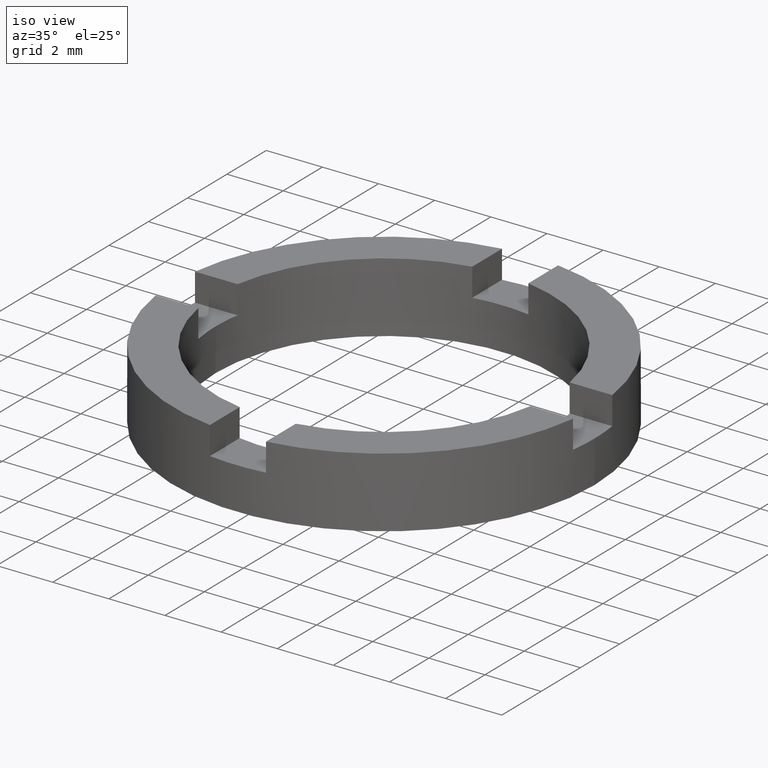
[diagram: clean part render]
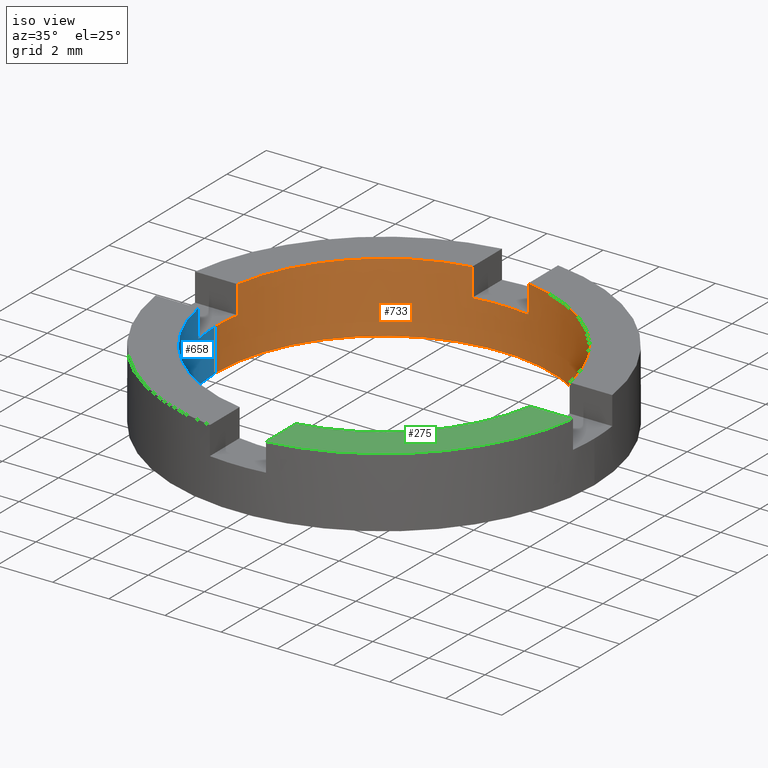
[diagram: same view with three faces highlighted in distinct colors, each labeled with its STEP entity id]
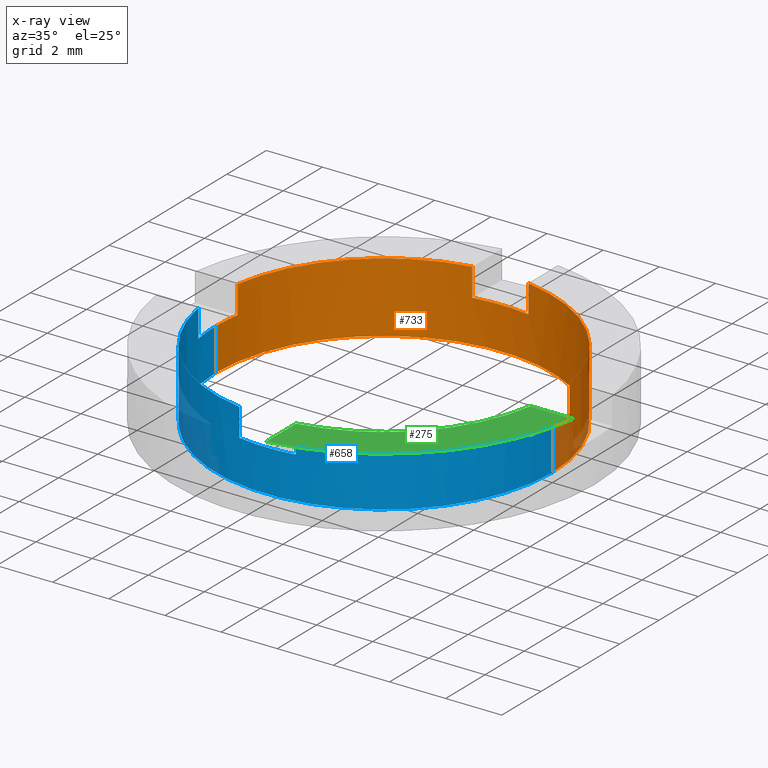
[diagram: x-ray of the same camera — body ghosted, the three highlighted faces saturated]
A machine part, iso view with three faces highlighted in distinct colors.
The next image is the same camera in x-ray (body ghosted, the three faces saturated) — at least one of them is partly hidden behind the body in this view.
Their STEP definitions:

[orange] entity #733 — the highlighted cylindrical surface (partial cylindrical patch) has radius 6 mm, axis along (-0, -0, -1).
#5 = LINE ( 'NONE', #232, #266 ) ;
#26 = EDGE_LOOP ( 'NONE', ( #28, #44, #123, #539, #557, #289, #269, #130, #306, #295, #47, #38 ) ) ;
#28 = ORIENTED_EDGE ( 'NONE', *, *, #442, .F. ) ;
#38 = ORIENTED_EDGE ( 'NONE', *, *, #59, .F. ) ;
#39 = CIRCLE ( 'NONE', #252, 6.000000000000000888 ) ;
#44 = ORIENTED_EDGE ( 'NONE', *, *, #230, .F. ) ;
#45 = CARTESIAN_POINT ( 'NONE',  ( 1.000000000000001332, 5.916079783099617018, 1.500000000000000000 ) ) ;
#46 = VECTOR ( 'NONE', #496, 1000.000000000000000 ) ;
#47 = ORIENTED_EDGE ( 'NONE', *, *, #117, .T. ) ;
#51 = VECTOR ( 'NONE', #700, 1000.000000000000000 ) ;
#55 = EDGE_CURVE ( 'NONE', #559, #333, #5, .T. ) ;
#59 = EDGE_CURVE ( 'NONE', #143, #564, #39, .T. ) ;
#65 = VERTEX_POINT ( 'NONE', #480 ) ;
#71 = EDGE_CURVE ( 'NONE', #136, #535, #304, .T. ) ;
#86 = DIRECTION ( 'NONE',  ( 0.000000000000000000, -0.000000000000000000, -1.000000000000000000 ) ) ;
#89 = VECTOR ( 'NONE', #349, 1000.000000000000000 ) ;
#92 = CARTESIAN_POINT ( 'NONE',  ( 5.916079783099621459, 0.9999999999999767963, 1.500000000000000000 ) ) ;
#97 = CIRCLE ( 'NONE', #506, 6.000000000000000888 ) ;
#100 = CIRCLE ( 'NONE', #674, 6.000000000000000888 ) ;
#101 = VECTOR ( 'NONE', #153, 1000.000000000000000 ) ;
#109 = FACE_OUTER_BOUND ( 'NONE', #26, .T. ) ;
#115 = VECTOR ( 'NONE', #160, 1000.000000000000000 ) ;
#117 = EDGE_CURVE ( 'NONE', #136, #564, #279, .T. ) ;
#123 = ORIENTED_EDGE ( 'NONE', *, *, #652, .T. ) ;
#130 = ORIENTED_EDGE ( 'NONE', *, *, #309, .T. ) ;
#136 = VERTEX_POINT ( 'NONE', #777 ) ;
#143 = VERTEX_POINT ( 'NONE', #702 ) ;
#153 = DIRECTION ( 'NONE',  ( -0.000000000000000000, -0.000000000000000000, 1.000000000000000000 ) ) ;
#156 = AXIS2_PLACEMENT_3D ( 'NONE', #370, #177, #436 ) ;
#160 = DIRECTION ( 'NONE',  ( -0.000000000000000000, -0.000000000000000000, 1.000000000000000000 ) ) ;
#167 = CARTESIAN_POINT ( 'NONE',  ( 6.000000000000000888, 7.347880794884120722E-16, 2.500000000000000000 ) ) ;
#177 = DIRECTION ( 'NONE',  ( 0.000000000000000000, 0.000000000000000000, 1.000000000000000000 ) ) ;
#180 = CARTESIAN_POINT ( 'NONE',  ( 0.000000000000000000, 0.000000000000000000, 2.500000000000000000 ) ) ;
#221 = DIRECTION ( 'NONE',  ( 0.000000000000000000, 0.000000000000000000, 1.000000000000000000 ) ) ;
#223 = DIRECTION ( 'NONE',  ( 1.000000000000000000, 0.000000000000000000, 0.000000000000000000 ) ) ;
#230 = EDGE_CURVE ( 'NONE', #690, #278, #548, .T. ) ;
#232 = CARTESIAN_POINT ( 'NONE',  ( -0.9999999999999986677, 5.916079783099617906, 1.500000000000000000 ) ) ;
#239 = CARTESIAN_POINT ( 'NONE',  ( -0.9999999999999986677, 5.916079783099617906, 1.500000000000000000 ) ) ;
#241 = CARTESIAN_POINT ( 'NONE',  ( -6.000000000000000888, 0.000000000000000000, 2.500000000000000000 ) ) ;
#252 = AXIS2_PLACEMENT_3D ( 'NONE', #305, #221, #261 ) ;
#261 = DIRECTION ( 'NONE',  ( 1.000000000000000000, 0.000000000000000000, 0.000000000000000000 ) ) ;
#262 = VERTEX_POINT ( 'NONE', #376 ) ;
#266 = VECTOR ( 'NONE', #444, 1000.000000000000000 ) ;
#269 = ORIENTED_EDGE ( 'NONE', *, *, #55, .T. ) ;
#270 = CARTESIAN_POINT ( 'NONE',  ( 0.000000000000000000, 0.000000000000000000, 1.500000000000000000 ) ) ;
#278 = VERTEX_POINT ( 'NONE', #605 ) ;
#279 = LINE ( 'NONE', #241, #46 ) ;
#281 = CARTESIAN_POINT ( 'NONE',  ( -0.9999999999999986677, 5.916079783099617906, 2.500000000000000000 ) ) ;
#289 = ORIENTED_EDGE ( 'NONE', *, *, #558, .F. ) ;
#295 = ORIENTED_EDGE ( 'NONE', *, *, #71, .F. ) ;
#299 = VERTEX_POINT ( 'NONE', #354 ) ;
#304 = CIRCLE ( 'NONE', #706, 6.000000000000000888 ) ;
#305 = CARTESIAN_POINT ( 'NONE',  ( 0.000000000000000000, 0.000000000000000000, 0.000000000000000000 ) ) ;
#306 = ORIENTED_EDGE ( 'NONE', *, *, #461, .F. ) ;
#309 = EDGE_CURVE ( 'NONE', #333, #299, #350, .T. ) ;
#333 = VERTEX_POINT ( 'NONE', #281 ) ;
#349 = DIRECTION ( 'NONE',  ( -0.000000000000000000, -0.000000000000000000, -1.000000000000000000 ) ) ;
#350 = CIRCLE ( 'NONE', #156, 6.000000000000000888 ) ;
#354 = CARTESIAN_POINT ( 'NONE',  ( -5.916079783099614353, 1.000000000000021094, 2.500000000000000000 ) ) ;
#355 = LINE ( 'NONE', #495, #51 ) ;
#370 = CARTESIAN_POINT ( 'NONE',  ( 0.000000000000000000, 0.000000000000000000, 2.500000000000000000 ) ) ;
#372 = AXIS2_PLACEMENT_3D ( 'NONE', #385, #705, #749 ) ;
#376 = CARTESIAN_POINT ( 'NONE',  ( 5.916079783099621459, 0.9999999999999767963, 2.500000000000000000 ) ) ;
#378 = CYLINDRICAL_SURFACE ( 'NONE', #604, 6.000000000000000888 ) ;
#385 = CARTESIAN_POINT ( 'NONE',  ( 0.000000000000000000, 0.000000000000000000, 1.500000000000000000 ) ) ;
#410 = VERTEX_POINT ( 'NONE', #45 ) ;
#417 = EDGE_CURVE ( 'NONE', #262, #65, #97, .T. ) ;
#436 = DIRECTION ( 'NONE',  ( 1.000000000000000000, 0.000000000000000000, 0.000000000000000000 ) ) ;
#442 = EDGE_CURVE ( 'NONE', #278, #143, #619, .T. ) ;
#444 = DIRECTION ( 'NONE',  ( -0.000000000000000000, -0.000000000000000000, 1.000000000000000000 ) ) ;
#446 = CARTESIAN_POINT ( 'NONE',  ( 1.000000000000001332, 5.916079783099617018, 1.500000000000000000 ) ) ;
#461 = EDGE_CURVE ( 'NONE', #535, #299, #355, .T. ) ;
#480 = CARTESIAN_POINT ( 'NONE',  ( 1.000000000000001332, 5.916079783099617018, 2.500000000000000000 ) ) ;
#495 = CARTESIAN_POINT ( 'NONE',  ( -5.916079783099614353, 1.000000000000021094, 1.500000000000000000 ) ) ;
#496 = DIRECTION ( 'NONE',  ( -0.000000000000000000, -0.000000000000000000, -1.000000000000000000 ) ) ;
#506 = AXIS2_PLACEMENT_3D ( 'NONE', #180, #731, #223 ) ;
#507 = DIRECTION ( 'NONE',  ( -1.000000000000000000, 0.000000000000000000, 0.000000000000000000 ) ) ;
#511 = EDGE_CURVE ( 'NONE', #410, #65, #623, .T. ) ;
#530 = CARTESIAN_POINT ( 'NONE',  ( -5.916079783099614353, 1.000000000000021094, 1.500000000000000000 ) ) ;
#535 = VERTEX_POINT ( 'NONE', #530 ) ;
#539 = ORIENTED_EDGE ( 'NONE', *, *, #417, .T. ) ;
#542 = DIRECTION ( 'NONE',  ( 1.000000000000000000, 0.000000000000000000, 0.000000000000000000 ) ) ;
#548 = CIRCLE ( 'NONE', #372, 6.000000000000000888 ) ;
#557 = ORIENTED_EDGE ( 'NONE', *, *, #511, .F. ) ;
#558 = EDGE_CURVE ( 'NONE', #559, #410, #100, .T. ) ;
#559 = VERTEX_POINT ( 'NONE', #239 ) ;
#564 = VERTEX_POINT ( 'NONE', #639 ) ;
#590 = CARTESIAN_POINT ( 'NONE',  ( 0.000000000000000000, 0.000000000000000000, 2.500000000000000000 ) ) ;
#604 = AXIS2_PLACEMENT_3D ( 'NONE', #590, #718, #507 ) ;
#605 = CARTESIAN_POINT ( 'NONE',  ( 6.000000000000000888, 7.347880794884120722E-16, 1.500000000000000000 ) ) ;
#619 = LINE ( 'NONE', #167, #89 ) ;
#623 = LINE ( 'NONE', #446, #101 ) ;
#636 = LINE ( 'NONE', #92, #115 ) ;
#639 = CARTESIAN_POINT ( 'NONE',  ( -6.000000000000000888, 0.000000000000000000, 0.000000000000000000 ) ) ;
#652 = EDGE_CURVE ( 'NONE', #690, #262, #636, .T. ) ;
#674 = AXIS2_PLACEMENT_3D ( 'NONE', #778, #86, #695 ) ;
#690 = VERTEX_POINT ( 'NONE', #712 ) ;
#695 = DIRECTION ( 'NONE',  ( 1.000000000000000000, 0.000000000000000000, 0.000000000000000000 ) ) ;
#700 = DIRECTION ( 'NONE',  ( -0.000000000000000000, -0.000000000000000000, 1.000000000000000000 ) ) ;
#702 = CARTESIAN_POINT ( 'NONE',  ( 6.000000000000000888, 7.347880794884120722E-16, 0.000000000000000000 ) ) ;
#705 = DIRECTION ( 'NONE',  ( 0.000000000000000000, -0.000000000000000000, -1.000000000000000000 ) ) ;
#706 = AXIS2_PLACEMENT_3D ( 'NONE', #270, #751, #542 ) ;
#712 = CARTESIAN_POINT ( 'NONE',  ( 5.916079783099621459, 0.9999999999999767963, 1.500000000000000000 ) ) ;
#718 = DIRECTION ( 'NONE',  ( -0.000000000000000000, -0.000000000000000000, -1.000000000000000000 ) ) ;
#731 = DIRECTION ( 'NONE',  ( 0.000000000000000000, 0.000000000000000000, 1.000000000000000000 ) ) ;
#733 = ADVANCED_FACE ( 'NONE', ( #109 ), #378, .F. ) ;
#749 = DIRECTION ( 'NONE',  ( 1.000000000000000000, -1.776356839400250465E-15, 0.000000000000000000 ) ) ;
#751 = DIRECTION ( 'NONE',  ( 0.000000000000000000, -0.000000000000000000, -1.000000000000000000 ) ) ;
#777 = CARTESIAN_POINT ( 'NONE',  ( -6.000000000000000888, 0.000000000000000000, 1.500000000000000000 ) ) ;
#778 = CARTESIAN_POINT ( 'NONE',  ( 0.000000000000000000, 0.000000000000000000, 1.500000000000000000 ) ) ;

[blue] entity #658 — the highlighted cylindrical surface (partial cylindrical patch) has radius 6 mm, axis along (-0, -0, -1).
#10 = VECTOR ( 'NONE', #395, 1000.000000000000000 ) ;
#14 = ORIENTED_EDGE ( 'NONE', *, *, #146, .F. ) ;
#15 = CIRCLE ( 'NONE', #662, 6.000000000000000888 ) ;
#16 = AXIS2_PLACEMENT_3D ( 'NONE', #671, #763, #220 ) ;
#23 = LINE ( 'NONE', #202, #290 ) ;
#24 = ORIENTED_EDGE ( 'NONE', *, *, #172, .T. ) ;
#35 = ORIENTED_EDGE ( 'NONE', *, *, #768, .F. ) ;
#46 = VECTOR ( 'NONE', #496, 1000.000000000000000 ) ;
#72 = DIRECTION ( 'NONE',  ( 0.000000000000000000, 0.000000000000000000, 1.000000000000000000 ) ) ;
#74 = CIRCLE ( 'NONE', #16, 6.000000000000000888 ) ;
#76 = DIRECTION ( 'NONE',  ( 1.000000000000000000, 0.000000000000000000, 0.000000000000000000 ) ) ;
#79 = CIRCLE ( 'NONE', #447, 6.000000000000000888 ) ;
#89 = VECTOR ( 'NONE', #349, 1000.000000000000000 ) ;
#95 = VECTOR ( 'NONE', #301, 1000.000000000000000 ) ;
#117 = EDGE_CURVE ( 'NONE', #136, #564, #279, .T. ) ;
#122 = ORIENTED_EDGE ( 'NONE', *, *, #715, .F. ) ;
#134 = VERTEX_POINT ( 'NONE', #320 ) ;
#136 = VERTEX_POINT ( 'NONE', #777 ) ;
#143 = VERTEX_POINT ( 'NONE', #702 ) ;
#146 = EDGE_CURVE ( 'NONE', #588, #134, #258, .T. ) ;
#148 = ORIENTED_EDGE ( 'NONE', *, *, #578, .T. ) ;
#149 = ORIENTED_EDGE ( 'NONE', *, *, #117, .F. ) ;
#162 = VERTEX_POINT ( 'NONE', #498 ) ;
#163 = DIRECTION ( 'NONE',  ( 1.000000000000000000, 7.993605777301127091E-15, 0.000000000000000000 ) ) ;
#167 = CARTESIAN_POINT ( 'NONE',  ( 6.000000000000000888, 7.347880794884120722E-16, 2.500000000000000000 ) ) ;
#172 = EDGE_CURVE ( 'NONE', #287, #134, #15, .T. ) ;
#179 = EDGE_CURVE ( 'NONE', #318, #551, #23, .T. ) ;
#188 = CARTESIAN_POINT ( 'NONE',  ( 5.916079783099613465, -1.000000000000023315, 1.500000000000000000 ) ) ;
#197 = DIRECTION ( 'NONE',  ( -0.000000000000000000, -0.000000000000000000, 1.000000000000000000 ) ) ;
#198 = CARTESIAN_POINT ( 'NONE',  ( 1.000000000000001332, -5.916079783099617018, 1.500000000000000000 ) ) ;
#202 = CARTESIAN_POINT ( 'NONE',  ( -5.916079783099620570, -0.9999999999999790168, 1.500000000000000000 ) ) ;
#220 = DIRECTION ( 'NONE',  ( 1.000000000000000000, 0.000000000000000000, 0.000000000000000000 ) ) ;
#225 = AXIS2_PLACEMENT_3D ( 'NONE', #274, #726, #598 ) ;
#241 = CARTESIAN_POINT ( 'NONE',  ( -6.000000000000000888, 0.000000000000000000, 2.500000000000000000 ) ) ;
#250 = CARTESIAN_POINT ( 'NONE',  ( -0.9999999999999986677, -5.916079783099617906, 1.500000000000000000 ) ) ;
#253 = EDGE_CURVE ( 'NONE', #564, #143, #74, .T. ) ;
#258 = LINE ( 'NONE', #188, #10 ) ;
#274 = CARTESIAN_POINT ( 'NONE',  ( 0.000000000000000000, 0.000000000000000000, 1.500000000000000000 ) ) ;
#278 = VERTEX_POINT ( 'NONE', #605 ) ;
#279 = LINE ( 'NONE', #241, #46 ) ;
#284 = ORIENTED_EDGE ( 'NONE', *, *, #442, .T. ) ;
#287 = VERTEX_POINT ( 'NONE', #679 ) ;
#290 = VECTOR ( 'NONE', #197, 1000.000000000000000 ) ;
#301 = DIRECTION ( 'NONE',  ( -0.000000000000000000, -0.000000000000000000, 1.000000000000000000 ) ) ;
#318 = VERTEX_POINT ( 'NONE', #687 ) ;
#320 = CARTESIAN_POINT ( 'NONE',  ( 5.916079783099613465, -1.000000000000023315, 2.500000000000000000 ) ) ;
#322 = CARTESIAN_POINT ( 'NONE',  ( -5.916079783099620570, -0.9999999999999790168, 2.500000000000000000 ) ) ;
#334 = AXIS2_PLACEMENT_3D ( 'NONE', #387, #72, #380 ) ;
#336 = DIRECTION ( 'NONE',  ( -1.000000000000000000, 0.000000000000000000, 0.000000000000000000 ) ) ;
#342 = CIRCLE ( 'NONE', #334, 6.000000000000000888 ) ;
#349 = DIRECTION ( 'NONE',  ( -0.000000000000000000, -0.000000000000000000, -1.000000000000000000 ) ) ;
#359 = AXIS2_PLACEMENT_3D ( 'NONE', #501, #560, #163 ) ;
#362 = VECTOR ( 'NONE', #450, 1000.000000000000000 ) ;
#379 = CIRCLE ( 'NONE', #359, 6.000000000000000888 ) ;
#380 = DIRECTION ( 'NONE',  ( 1.000000000000000000, 0.000000000000000000, 0.000000000000000000 ) ) ;
#384 = CARTESIAN_POINT ( 'NONE',  ( 5.916079783099613465, -1.000000000000023315, 1.500000000000000000 ) ) ;
#387 = CARTESIAN_POINT ( 'NONE',  ( 0.000000000000000000, 0.000000000000000000, 2.500000000000000000 ) ) ;
#389 = ORIENTED_EDGE ( 'NONE', *, *, #253, .F. ) ;
#395 = DIRECTION ( 'NONE',  ( -0.000000000000000000, -0.000000000000000000, 1.000000000000000000 ) ) ;
#398 = ORIENTED_EDGE ( 'NONE', *, *, #540, .T. ) ;
#400 = VERTEX_POINT ( 'NONE', #513 ) ;
#413 = ORIENTED_EDGE ( 'NONE', *, *, #622, .F. ) ;
#422 = EDGE_LOOP ( 'NONE', ( #413, #284, #389, #149, #122, #579, #148, #673, #35, #398, #24, #14 ) ) ;
#442 = EDGE_CURVE ( 'NONE', #278, #143, #619, .T. ) ;
#447 = AXIS2_PLACEMENT_3D ( 'NONE', #750, #780, #499 ) ;
#450 = DIRECTION ( 'NONE',  ( -0.000000000000000000, -0.000000000000000000, 1.000000000000000000 ) ) ;
#454 = EDGE_CURVE ( 'NONE', #162, #694, #632, .T. ) ;
#496 = DIRECTION ( 'NONE',  ( -0.000000000000000000, -0.000000000000000000, -1.000000000000000000 ) ) ;
#498 = CARTESIAN_POINT ( 'NONE',  ( -0.9999999999999986677, -5.916079783099617906, 1.500000000000000000 ) ) ;
#499 = DIRECTION ( 'NONE',  ( 1.000000000000000000, 0.000000000000000000, 0.000000000000000000 ) ) ;
#501 = CARTESIAN_POINT ( 'NONE',  ( 0.000000000000000000, 0.000000000000000000, 1.500000000000000000 ) ) ;
#513 = CARTESIAN_POINT ( 'NONE',  ( 1.000000000000001332, -5.916079783099617018, 1.500000000000000000 ) ) ;
#540 = EDGE_CURVE ( 'NONE', #400, #287, #594, .T. ) ;
#551 = VERTEX_POINT ( 'NONE', #322 ) ;
#560 = DIRECTION ( 'NONE',  ( 0.000000000000000000, -0.000000000000000000, -1.000000000000000000 ) ) ;
#564 = VERTEX_POINT ( 'NONE', #639 ) ;
#578 = EDGE_CURVE ( 'NONE', #551, #694, #342, .T. ) ;
#579 = ORIENTED_EDGE ( 'NONE', *, *, #179, .T. ) ;
#588 = VERTEX_POINT ( 'NONE', #384 ) ;
#594 = LINE ( 'NONE', #198, #362 ) ;
#598 = DIRECTION ( 'NONE',  ( 1.000000000000000000, 0.000000000000000000, 0.000000000000000000 ) ) ;
#605 = CARTESIAN_POINT ( 'NONE',  ( 6.000000000000000888, 7.347880794884120722E-16, 1.500000000000000000 ) ) ;
#619 = LINE ( 'NONE', #167, #89 ) ;
#620 = CARTESIAN_POINT ( 'NONE',  ( 0.000000000000000000, 0.000000000000000000, 2.500000000000000000 ) ) ;
#622 = EDGE_CURVE ( 'NONE', #278, #588, #79, .T. ) ;
#632 = LINE ( 'NONE', #250, #95 ) ;
#637 = CYLINDRICAL_SURFACE ( 'NONE', #722, 6.000000000000000888 ) ;
#639 = CARTESIAN_POINT ( 'NONE',  ( -6.000000000000000888, 0.000000000000000000, 0.000000000000000000 ) ) ;
#640 = FACE_OUTER_BOUND ( 'NONE', #422, .T. ) ;
#646 = CIRCLE ( 'NONE', #225, 6.000000000000000888 ) ;
#650 = DIRECTION ( 'NONE',  ( -0.000000000000000000, -0.000000000000000000, -1.000000000000000000 ) ) ;
#653 = CARTESIAN_POINT ( 'NONE',  ( -0.9999999999999986677, -5.916079783099617906, 2.500000000000000000 ) ) ;
#658 = ADVANCED_FACE ( 'NONE', ( #640 ), #637, .F. ) ;
#662 = AXIS2_PLACEMENT_3D ( 'NONE', #742, #708, #76 ) ;
#671 = CARTESIAN_POINT ( 'NONE',  ( 0.000000000000000000, 0.000000000000000000, 0.000000000000000000 ) ) ;
#673 = ORIENTED_EDGE ( 'NONE', *, *, #454, .F. ) ;
#679 = CARTESIAN_POINT ( 'NONE',  ( 1.000000000000001332, -5.916079783099617018, 2.500000000000000000 ) ) ;
#687 = CARTESIAN_POINT ( 'NONE',  ( -5.916079783099620570, -0.9999999999999790168, 1.500000000000000000 ) ) ;
#694 = VERTEX_POINT ( 'NONE', #653 ) ;
#702 = CARTESIAN_POINT ( 'NONE',  ( 6.000000000000000888, 7.347880794884120722E-16, 0.000000000000000000 ) ) ;
#708 = DIRECTION ( 'NONE',  ( 0.000000000000000000, 0.000000000000000000, 1.000000000000000000 ) ) ;
#715 = EDGE_CURVE ( 'NONE', #318, #136, #379, .T. ) ;
#722 = AXIS2_PLACEMENT_3D ( 'NONE', #620, #650, #336 ) ;
#726 = DIRECTION ( 'NONE',  ( 0.000000000000000000, -0.000000000000000000, -1.000000000000000000 ) ) ;
#742 = CARTESIAN_POINT ( 'NONE',  ( 0.000000000000000000, 0.000000000000000000, 2.500000000000000000 ) ) ;
#750 = CARTESIAN_POINT ( 'NONE',  ( 0.000000000000000000, 0.000000000000000000, 1.500000000000000000 ) ) ;
#763 = DIRECTION ( 'NONE',  ( 0.000000000000000000, 0.000000000000000000, 1.000000000000000000 ) ) ;
#768 = EDGE_CURVE ( 'NONE', #400, #162, #646, .T. ) ;
#777 = CARTESIAN_POINT ( 'NONE',  ( -6.000000000000000888, 0.000000000000000000, 1.500000000000000000 ) ) ;
#780 = DIRECTION ( 'NONE',  ( 0.000000000000000000, -0.000000000000000000, -1.000000000000000000 ) ) ;

[green] entity #275 — the highlighted planar face has unit normal (0, 0, 1).
#15 = CIRCLE ( 'NONE', #662, 6.000000000000000888 ) ;
#48 = CARTESIAN_POINT ( 'NONE',  ( 0.000000000000000000, 0.000000000000000000, 2.500000000000000000 ) ) ;
#76 = DIRECTION ( 'NONE',  ( 1.000000000000000000, 0.000000000000000000, 0.000000000000000000 ) ) ;
#88 = VECTOR ( 'NONE', #276, 1000.000000000000000 ) ;
#93 = LINE ( 'NONE', #762, #88 ) ;
#129 = VERTEX_POINT ( 'NONE', #325 ) ;
#134 = VERTEX_POINT ( 'NONE', #320 ) ;
#159 = EDGE_LOOP ( 'NONE', ( #399, #403, #259, #565 ) ) ;
#172 = EDGE_CURVE ( 'NONE', #287, #134, #15, .T. ) ;
#191 = DIRECTION ( 'NONE',  ( 1.000000000000000000, 0.000000000000000000, 0.000000000000000000 ) ) ;
#214 = DIRECTION ( 'NONE',  ( -1.445602896647339348E-17, 1.000000000000000000, 0.000000000000000000 ) ) ;
#248 = CARTESIAN_POINT ( 'NONE',  ( 1.000000000000001332, 1.445602896647341197E-17, 2.500000000000000000 ) ) ;
#259 = ORIENTED_EDGE ( 'NONE', *, *, #448, .F. ) ;
#275 = ADVANCED_FACE ( 'NONE', ( #364 ), #517, .T. ) ;
#276 = DIRECTION ( 'NONE',  ( 1.000000000000000000, -3.744111502316608908E-15, 0.000000000000000000 ) ) ;
#287 = VERTEX_POINT ( 'NONE', #679 ) ;
#320 = CARTESIAN_POINT ( 'NONE',  ( 5.916079783099613465, -1.000000000000023315, 2.500000000000000000 ) ) ;
#325 = CARTESIAN_POINT ( 'NONE',  ( 7.433034373659249461, -1.000000000000028866, 2.500000000000000000 ) ) ;
#348 = EDGE_CURVE ( 'NONE', #134, #129, #93, .T. ) ;
#364 = FACE_OUTER_BOUND ( 'NONE', #159, .T. ) ;
#365 = CIRCLE ( 'NONE', #382, 7.500000000000000000 ) ;
#368 = CARTESIAN_POINT ( 'NONE',  ( 1.000000000000001332, -7.433034373659253013, 2.500000000000000000 ) ) ;
#382 = AXIS2_PLACEMENT_3D ( 'NONE', #752, #627, #191 ) ;
#399 = ORIENTED_EDGE ( 'NONE', *, *, #348, .F. ) ;
#403 = ORIENTED_EDGE ( 'NONE', *, *, #172, .F. ) ;
#424 = VERTEX_POINT ( 'NONE', #368 ) ;
#448 = EDGE_CURVE ( 'NONE', #424, #287, #577, .T. ) ;
#469 = AXIS2_PLACEMENT_3D ( 'NONE', #48, #614, #729 ) ;
#517 = PLANE ( 'NONE',  #469 ) ;
#524 = EDGE_CURVE ( 'NONE', #424, #129, #365, .T. ) ;
#565 = ORIENTED_EDGE ( 'NONE', *, *, #524, .T. ) ;
#577 = LINE ( 'NONE', #248, #631 ) ;
#614 = DIRECTION ( 'NONE',  ( 0.000000000000000000, 0.000000000000000000, 1.000000000000000000 ) ) ;
#627 = DIRECTION ( 'NONE',  ( 0.000000000000000000, 0.000000000000000000, 1.000000000000000000 ) ) ;
#631 = VECTOR ( 'NONE', #214, 1000.000000000000000 ) ;
#662 = AXIS2_PLACEMENT_3D ( 'NONE', #742, #708, #76 ) ;
#679 = CARTESIAN_POINT ( 'NONE',  ( 1.000000000000001332, -5.916079783099617018, 2.500000000000000000 ) ) ;
#708 = DIRECTION ( 'NONE',  ( 0.000000000000000000, 0.000000000000000000, 1.000000000000000000 ) ) ;
#729 = DIRECTION ( 'NONE',  ( 1.000000000000000000, 0.000000000000000000, -0.000000000000000000 ) ) ;
#742 = CARTESIAN_POINT ( 'NONE',  ( 0.000000000000000000, 0.000000000000000000, 2.500000000000000000 ) ) ;
#752 = CARTESIAN_POINT ( 'NONE',  ( 0.000000000000000000, 0.000000000000000000, 2.500000000000000000 ) ) ;
#762 = CARTESIAN_POINT ( 'NONE',  ( -3.744111502316612853E-15, -1.000000000000001110, 2.500000000000000000 ) ) ;